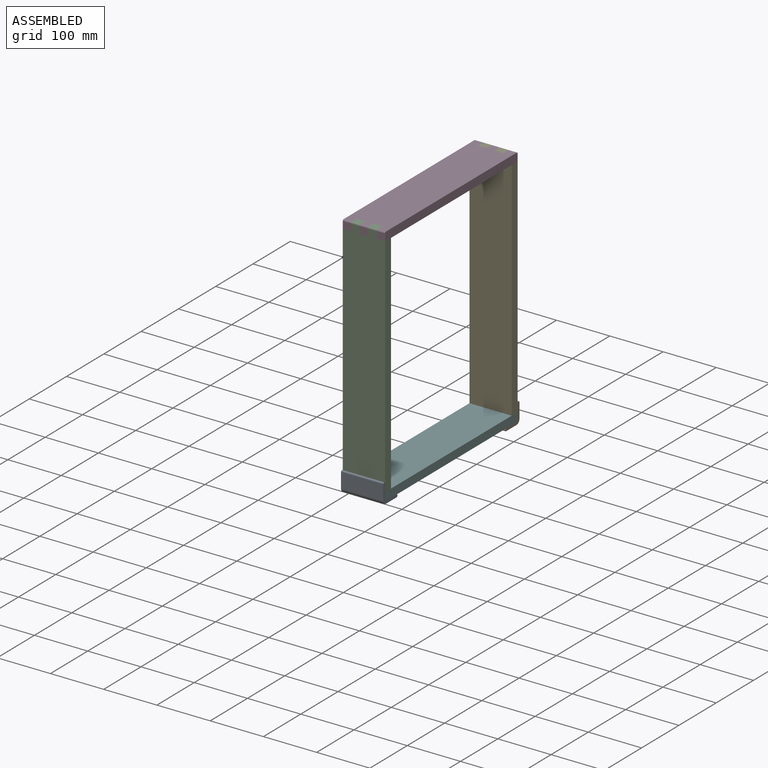
[diagram: assembled view]
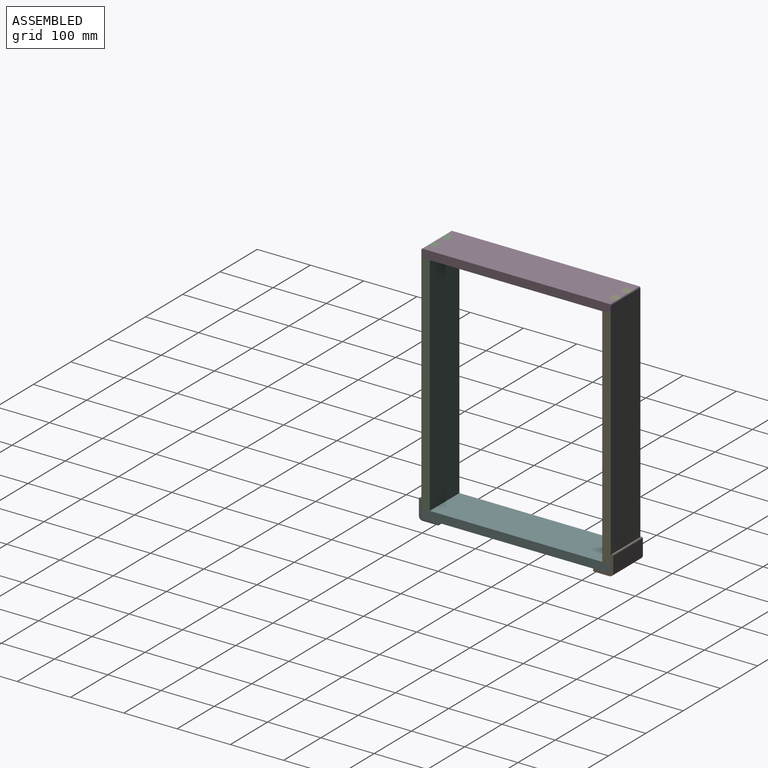
[diagram: assembled view, second angle]
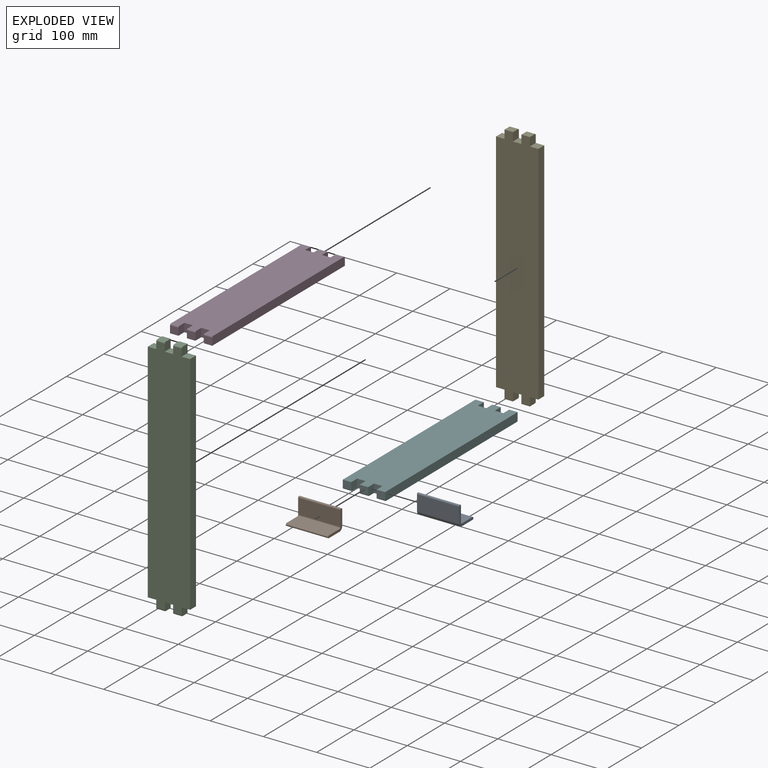
[diagram: exploded view]
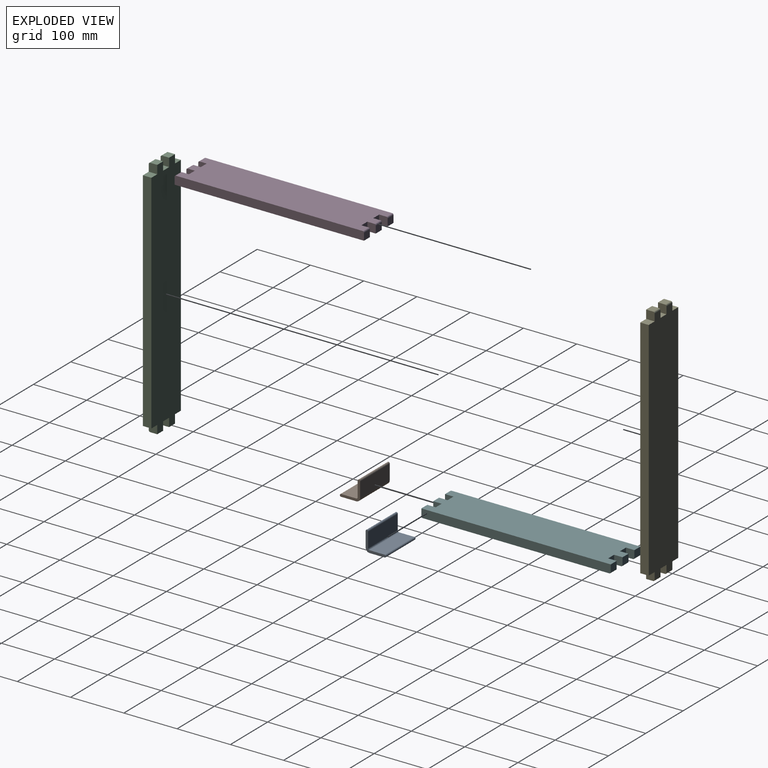
[diagram: exploded view, second angle]
ASSEMBLY  parts=6 mates=5
PART A: 12 faces, bbox 79.4x38.1x38.1 mm
  f0: plane 79.38x28.26mm, normal (0,0,1), area 2242.9mm2, adj f4,f5,f6,f9
  f1: plane 79.38x28.26mm, normal (0,1,0), area 2242.9mm2, adj f4,f5,f6,f8
  f2: plane 79.38x28.26mm, normal (0,-1,0), area 2242.9mm2, adj f4,f5,f7,f11
  f3: plane 79.38x28.26mm, normal (0,0,-1), area 2242.9mm2, adj f4,f5,f10,f11
  f4: plane 38.1x38.1mm, normal (1,0,0), area 324.6mm2, adj f0,f1,f2,f3,f6,f7,f8,f9
  f5: plane 38.1x38.1mm, normal (-1,0,0), area 324.6mm2, adj f0,f1,f2,f3,f6,f7,f8,f9
  f6: cylinder r=2.54mm len=79.38mm, axis (-1,0,0), area 316.7mm2, adj f0,f1,f4,f5
  f7: cylinder r=2.54mm len=79.38mm, axis (-1,0,0), area 304.1mm2, adj f2,f4,f5,f8
  f8: cylinder r=2.54mm len=79.38mm, axis (1,0,0), area 304.1mm2, adj f1,f4,f5,f7
  f9: cylinder r=2.54mm len=79.38mm, axis (1,0,0), area 304.1mm2, adj f0,f4,f5,f10
  f10: cylinder r=2.54mm len=79.38mm, axis (-1,0,0), area 304.1mm2, adj f3,f4,f5,f9
  f11: cylinder r=7.3mm len=79.38mm, axis (1,0,0), area 910.5mm2, adj f2,f3,f4,f5
PART B: same geometry as A
PART C: 26 faces, bbox 79.4x15.9x457.2 mm
  f0: plane 15.88x13.34mm, normal (0,0,1), area 211.7mm2, adj f7,f10,f20,f23
  f1: plane 15.88x13.34mm, normal (0,0,1), area 211.7mm2, adj f7,f8,f14,f25
  f2: plane 425.45x15.88mm, normal (-1,0,0), area 6754mm2, adj f6,f7,f15,f19
  f3: plane 15.88x13.34mm, normal (0,0,-1), area 211.7mm2, adj f7,f12,f17,f22
  f4: plane 15.88x13.34mm, normal (0,0,-1), area 211.7mm2, adj f7,f13,f18,f24
  f5: plane 425.45x15.88mm, normal (1,0,0), area 6754mm2, adj f6,f7,f16,f21
  f6: plane 452.12x79.38mm, normal (0,-1,0), area 34616.9mm2, adj f2,f5,f8,f9,f10,f11,f12,f13
  f7: plane 457.2x79.38mm, normal (0,1,0), area 34778.2mm2, adj f0,f1,f2,f3,f4,f5,f8,f9
  f8: plane 15.88x15.88mm, normal (1,0,0), area 250.6mm2, adj f1,f6,f7,f9,f25
  f9: plane 15.88x15.88mm, normal (0,0,1), area 252mm2, adj f6,f7,f8,f10
  f10: plane 15.88x15.88mm, normal (-1,0,0), area 250.6mm2, adj f0,f6,f7,f9,f23
  f11: plane 15.88x15.88mm, normal (0,0,-1), area 252mm2, adj f6,f7,f12,f13
  f12: plane 15.88x15.88mm, normal (-1,0,0), area 250.6mm2, adj f3,f6,f7,f11,f22
  f13: plane 15.88x15.88mm, normal (1,0,0), area 250.6mm2, adj f4,f6,f7,f11,f24
  f14: plane 15.88x15.88mm, normal (-1,0,0), area 250.6mm2, adj f1,f6,f7,f15,f25
  f15: plane 15.88x15.88mm, normal (0,0,1), area 252mm2, adj f2,f6,f7,f14
  f16: plane 15.88x15.88mm, normal (0,0,-1), area 252mm2, adj f5,f6,f7,f17
  f17: plane 15.88x15.88mm, normal (1,0,0), area 250.6mm2, adj f3,f6,f7,f16,f22
  f18: plane 15.88x15.88mm, normal (-1,0,0), area 250.6mm2, adj f4,f6,f7,f19,f24
  f19: plane 15.88x15.88mm, normal (0,0,-1), area 252mm2, adj f2,f6,f7,f18
  f20: plane 15.88x15.88mm, normal (1,0,0), area 250.6mm2, adj f0,f6,f7,f21,f23
  f21: plane 15.88x15.88mm, normal (0,0,1), area 252mm2, adj f5,f6,f7,f20
  f22: cylinder r=2.54mm len=15.88mm, axis (-1,0,0), area 63.3mm2, adj f3,f6,f12,f17
  f23: cylinder r=2.54mm len=15.88mm, axis (1,0,0), area 63.3mm2, adj f0,f6,f10,f20
  f24: cylinder r=2.54mm len=15.88mm, axis (-1,0,0), area 63.3mm2, adj f4,f6,f13,f18
  f25: cylinder r=2.54mm len=15.88mm, axis (1,0,0), area 63.3mm2, adj f1,f6,f8,f14
PART D: 28 faces, bbox 79.4x355.6x15.9 mm
  f0: plane 15.88x13.34mm, normal (0,1,0), area 211.7mm2, adj f8,f9,f19,f27
  f1: plane 15.88x13.34mm, normal (0,1,0), area 211.7mm2, adj f9,f16,f21,f23
  f2: plane 350.52x79.38mm, normal (0,0,1), area 26975.8mm2, adj f6,f8,f10,f11,f12,f13,f14,f15
  f3: plane 15.88x13.34mm, normal (0,-1,0), area 211.7mm2, adj f6,f9,f12,f24
  f4: plane 15.88x13.34mm, normal (0,-1,0), area 211.7mm2, adj f9,f11,f14,f25
  f5: plane 15.88x13.34mm, normal (0,-1,0), area 211.7mm2, adj f8,f9,f15,f26
  f6: plane 355.6x15.88mm, normal (1,0,0), area 5642.4mm2, adj f2,f3,f7,f9,f22,f24
  f7: plane 15.88x13.34mm, normal (0,1,0), area 211.7mm2, adj f6,f9,f18,f22
  f8: plane 355.6x15.88mm, normal (-1,0,0), area 5642.4mm2, adj f0,f2,f5,f9,f26,f27
  f9: plane 355.6x79.38mm, normal (0,0,-1), area 27217.7mm2, adj f0,f1,f3,f4,f5,f6,f7,f8
  f10: plane 15.88x15.88mm, normal (0,-1,0), area 252mm2, adj f2,f9,f11,f12
  f11: plane 15.88x15.88mm, normal (1,0,0), area 250.6mm2, adj f2,f4,f9,f10,f25
  f12: plane 15.88x15.88mm, normal (-1,0,0), area 250.6mm2, adj f2,f3,f9,f10,f24
  f13: plane 15.88x15.88mm, normal (0,-1,0), area 252mm2, adj f2,f9,f14,f15
  f14: plane 15.88x15.88mm, normal (-1,0,0), area 250.6mm2, adj f2,f4,f9,f13,f25
  f15: plane 15.88x15.88mm, normal (1,0,0), area 250.6mm2, adj f2,f5,f9,f13,f26
  f16: plane 15.88x15.88mm, normal (1,0,0), area 250.6mm2, adj f1,f2,f9,f17,f23
  f17: plane 15.88x15.88mm, normal (0,1,0), area 252mm2, adj f2,f9,f16,f18
  f18: plane 15.88x15.88mm, normal (-1,0,0), area 250.6mm2, adj f2,f7,f9,f17,f22
  f19: plane 15.88x15.88mm, normal (1,0,0), area 250.6mm2, adj f0,f2,f9,f20,f27
  f20: plane 15.88x15.88mm, normal (0,1,0), area 252mm2, adj f2,f9,f19,f21
  f21: plane 15.88x15.88mm, normal (-1,0,0), area 250.6mm2, adj f1,f2,f9,f20,f23
  f22: cylinder r=2.54mm len=15.88mm, axis (-1,0,0), area 63.3mm2, adj f2,f6,f7,f18
  f23: cylinder r=2.54mm len=15.88mm, axis (-1,0,0), area 63.3mm2, adj f1,f2,f16,f21
  f24: cylinder r=2.54mm len=15.88mm, axis (1,0,0), area 63.3mm2, adj f2,f3,f6,f12
  f25: cylinder r=2.54mm len=15.88mm, axis (1,0,0), area 63.3mm2, adj f2,f4,f11,f14
  f26: cylinder r=2.54mm len=15.88mm, axis (1,0,0), area 63.3mm2, adj f2,f5,f8,f15
  f27: cylinder r=2.54mm len=15.88mm, axis (-1,0,0), area 63.3mm2, adj f0,f2,f8,f19
PART E: same geometry as C
PART F: same geometry as D
PLACE A t=(0,-20.64,-4.76)mm
PLACE B rot(axis=(1,0,0),90deg) t=(0,344.49,-4.76)mm
PLACE C at identity fixed
PLACE D at identity
PLACE E rot(axis=(0,0,1),180deg) t=(79.37,323.85,0)mm
PLACE F rot(axis=(0,1,0),180deg) t=(79.38,0,457.2)mm
MATE fastened F.f8 <-> A.f4  axis (1,0,0) through (79.38,-15.87,2.54)mm
MATE fastened C.f6 <-> F.f4  axis (0,-1,0) through (39.69,-15.88,15.88)mm
MATE fastened C.f6 <-> D.f4  axis (0,-1,0) through (39.69,-15.88,441.33)mm
MATE fastened D.f1 <-> E.f6  axis (0,1,0) through (39.69,339.73,441.33)mm
MATE fastened F.f8 <-> B.f4  axis (1,0,0) through (79.38,339.73,2.54)mm
